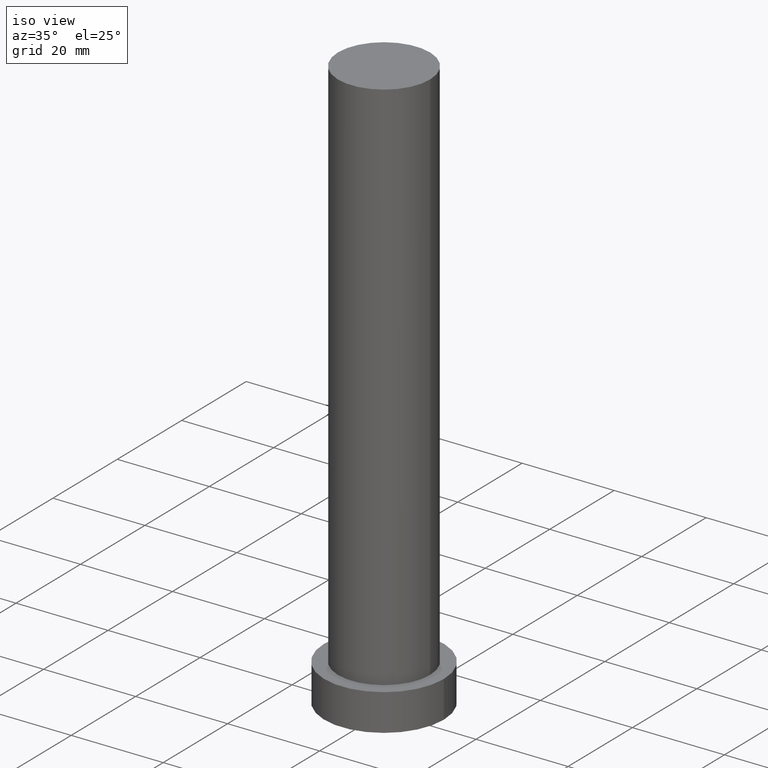
[diagram: clean part render]
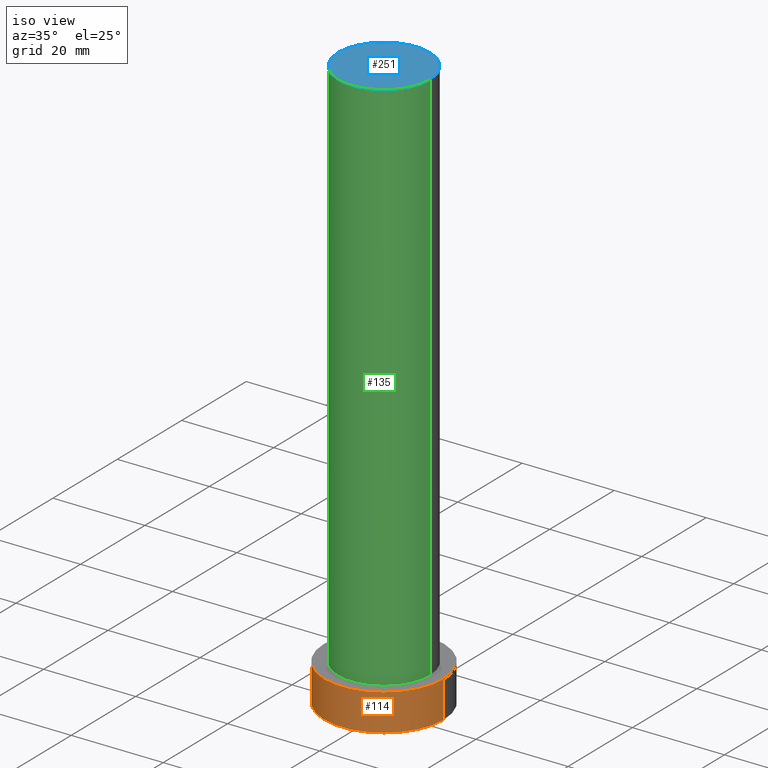
[diagram: same view with three faces highlighted in distinct colors, each labeled with its STEP entity id]
A machine part, iso view with three faces highlighted in distinct colors.
Their STEP definitions:

[orange] entity #114 — the highlighted cylindrical surface (partial cylindrical patch) has radius 13 mm, axis along (-0, -0, -1).
#15 = AXIS2_PLACEMENT_3D ( 'NONE', #52, #247, #51 ) ;
#22 = ORIENTED_EDGE ( 'NONE', *, *, #34, .F. ) ;
#31 = LINE ( 'NONE', #88, #58 ) ;
#32 = VECTOR ( 'NONE', #158, 1000.000000000000000 ) ;
#34 = EDGE_CURVE ( 'NONE', #164, #203, #76, .T. ) ;
#45 = ORIENTED_EDGE ( 'NONE', *, *, #179, .F. ) ;
#47 = CARTESIAN_POINT ( 'NONE',  ( 13.00000000000000178, 1.592040838891559293E-15, 8.000000000000000000 ) ) ;
#50 = CARTESIAN_POINT ( 'NONE',  ( -13.00000000000000178, 0.000000000000000000, 0.000000000000000000 ) ) ;
#51 = DIRECTION ( 'NONE',  ( 1.000000000000000000, 0.000000000000000000, 0.000000000000000000 ) ) ;
#52 = CARTESIAN_POINT ( 'NONE',  ( 0.000000000000000000, 0.000000000000000000, 8.000000000000000000 ) ) ;
#55 = EDGE_CURVE ( 'NONE', #250, #203, #98, .T. ) ;
#57 = DIRECTION ( 'NONE',  ( 0.000000000000000000, 0.000000000000000000, 1.000000000000000000 ) ) ;
#58 = VECTOR ( 'NONE', #211, 1000.000000000000000 ) ;
#75 = CARTESIAN_POINT ( 'NONE',  ( 13.00000000000000178, 1.592040838891559293E-15, 8.000000000000000000 ) ) ;
#76 = LINE ( 'NONE', #75, #32 ) ;
#78 = FACE_OUTER_BOUND ( 'NONE', #178, .T. ) ;
#88 = CARTESIAN_POINT ( 'NONE',  ( -13.00000000000000178, 0.000000000000000000, 8.000000000000000000 ) ) ;
#92 = AXIS2_PLACEMENT_3D ( 'NONE', #233, #57, #138 ) ;
#98 = CIRCLE ( 'NONE', #92, 13.00000000000000178 ) ;
#109 = CARTESIAN_POINT ( 'NONE',  ( 13.00000000000000178, 1.592040838891559293E-15, 0.000000000000000000 ) ) ;
#114 = ADVANCED_FACE ( 'NONE', ( #78 ), #210, .T. ) ;
#118 = ORIENTED_EDGE ( 'NONE', *, *, #231, .T. ) ;
#121 = ORIENTED_EDGE ( 'NONE', *, *, #55, .T. ) ;
#127 = CARTESIAN_POINT ( 'NONE',  ( 0.000000000000000000, 0.000000000000000000, 8.000000000000000000 ) ) ;
#138 = DIRECTION ( 'NONE',  ( 1.000000000000000000, 0.000000000000000000, 0.000000000000000000 ) ) ;
#158 = DIRECTION ( 'NONE',  ( -0.000000000000000000, -0.000000000000000000, -1.000000000000000000 ) ) ;
#164 = VERTEX_POINT ( 'NONE', #47 ) ;
#171 = CARTESIAN_POINT ( 'NONE',  ( -13.00000000000000178, 0.000000000000000000, 8.000000000000000000 ) ) ;
#178 = EDGE_LOOP ( 'NONE', ( #22, #45, #118, #121 ) ) ;
#179 = EDGE_CURVE ( 'NONE', #220, #164, #248, .T. ) ;
#200 = AXIS2_PLACEMENT_3D ( 'NONE', #127, #246, #228 ) ;
#203 = VERTEX_POINT ( 'NONE', #109 ) ;
#210 = CYLINDRICAL_SURFACE ( 'NONE', #200, 13.00000000000000178 ) ;
#211 = DIRECTION ( 'NONE',  ( -0.000000000000000000, -0.000000000000000000, -1.000000000000000000 ) ) ;
#220 = VERTEX_POINT ( 'NONE', #171 ) ;
#228 = DIRECTION ( 'NONE',  ( -1.000000000000000000, 0.000000000000000000, 0.000000000000000000 ) ) ;
#231 = EDGE_CURVE ( 'NONE', #220, #250, #31, .T. ) ;
#233 = CARTESIAN_POINT ( 'NONE',  ( 0.000000000000000000, 0.000000000000000000, 0.000000000000000000 ) ) ;
#246 = DIRECTION ( 'NONE',  ( -0.000000000000000000, -0.000000000000000000, -1.000000000000000000 ) ) ;
#247 = DIRECTION ( 'NONE',  ( 0.000000000000000000, 0.000000000000000000, 1.000000000000000000 ) ) ;
#248 = CIRCLE ( 'NONE', #15, 13.00000000000000178 ) ;
#250 = VERTEX_POINT ( 'NONE', #50 ) ;

[blue] entity #251 — the highlighted planar face has unit normal (0, 0, 1).
#6 = CARTESIAN_POINT ( 'NONE',  ( 0.000000000000000000, 0.000000000000000000, 125.0000000000000000 ) ) ;
#13 = CARTESIAN_POINT ( 'NONE',  ( 10.00000000000000000, 1.224646799147353256E-15, 125.0000000000000000 ) ) ;
#39 = VERTEX_POINT ( 'NONE', #235 ) ;
#54 = AXIS2_PLACEMENT_3D ( 'NONE', #214, #94, #60 ) ;
#59 = EDGE_LOOP ( 'NONE', ( #253, #237 ) ) ;
#60 = DIRECTION ( 'NONE',  ( 1.000000000000000000, 0.000000000000000000, 0.000000000000000000 ) ) ;
#74 = EDGE_CURVE ( 'NONE', #39, #139, #175, .T. ) ;
#87 = CIRCLE ( 'NONE', #134, 10.00000000000000000 ) ;
#89 = CARTESIAN_POINT ( 'NONE',  ( 0.000000000000000000, 0.000000000000000000, 125.0000000000000000 ) ) ;
#94 = DIRECTION ( 'NONE',  ( 0.000000000000000000, 0.000000000000000000, 1.000000000000000000 ) ) ;
#107 = DIRECTION ( 'NONE',  ( 0.000000000000000000, 0.000000000000000000, 1.000000000000000000 ) ) ;
#134 = AXIS2_PLACEMENT_3D ( 'NONE', #89, #229, #156 ) ;
#139 = VERTEX_POINT ( 'NONE', #13 ) ;
#151 = DIRECTION ( 'NONE',  ( 1.000000000000000000, 0.000000000000000000, -0.000000000000000000 ) ) ;
#156 = DIRECTION ( 'NONE',  ( 1.000000000000000000, 0.000000000000000000, 0.000000000000000000 ) ) ;
#157 = EDGE_CURVE ( 'NONE', #139, #39, #87, .T. ) ;
#167 = FACE_OUTER_BOUND ( 'NONE', #59, .T. ) ;
#175 = CIRCLE ( 'NONE', #54, 10.00000000000000000 ) ;
#183 = PLANE ( 'NONE',  #234 ) ;
#214 = CARTESIAN_POINT ( 'NONE',  ( 0.000000000000000000, 0.000000000000000000, 125.0000000000000000 ) ) ;
#229 = DIRECTION ( 'NONE',  ( 0.000000000000000000, 0.000000000000000000, 1.000000000000000000 ) ) ;
#234 = AXIS2_PLACEMENT_3D ( 'NONE', #6, #107, #151 ) ;
#235 = CARTESIAN_POINT ( 'NONE',  ( -10.00000000000000000, 0.000000000000000000, 125.0000000000000000 ) ) ;
#237 = ORIENTED_EDGE ( 'NONE', *, *, #157, .T. ) ;
#251 = ADVANCED_FACE ( 'NONE', ( #167 ), #183, .T. ) ;
#253 = ORIENTED_EDGE ( 'NONE', *, *, #74, .T. ) ;

[green] entity #135 — the highlighted cylindrical surface (partial cylindrical patch) has radius 10 mm, axis along (-0, -0, -1).
#10 = CYLINDRICAL_SURFACE ( 'NONE', #249, 10.00000000000000000 ) ;
#13 = CARTESIAN_POINT ( 'NONE',  ( 10.00000000000000000, 1.224646799147353256E-15, 125.0000000000000000 ) ) ;
#28 = DIRECTION ( 'NONE',  ( 0.000000000000000000, 0.000000000000000000, 1.000000000000000000 ) ) ;
#37 = ORIENTED_EDGE ( 'NONE', *, *, #74, .F. ) ;
#39 = VERTEX_POINT ( 'NONE', #235 ) ;
#43 = VERTEX_POINT ( 'NONE', #217 ) ;
#54 = AXIS2_PLACEMENT_3D ( 'NONE', #214, #94, #60 ) ;
#60 = DIRECTION ( 'NONE',  ( 1.000000000000000000, 0.000000000000000000, 0.000000000000000000 ) ) ;
#65 = ORIENTED_EDGE ( 'NONE', *, *, #197, .T. ) ;
#68 = DIRECTION ( 'NONE',  ( -1.000000000000000000, 0.000000000000000000, 0.000000000000000000 ) ) ;
#70 = DIRECTION ( 'NONE',  ( -0.000000000000000000, -0.000000000000000000, -1.000000000000000000 ) ) ;
#74 = EDGE_CURVE ( 'NONE', #39, #139, #175, .T. ) ;
#82 = LINE ( 'NONE', #86, #225 ) ;
#86 = CARTESIAN_POINT ( 'NONE',  ( -10.00000000000000000, 0.000000000000000000, 125.0000000000000000 ) ) ;
#91 = AXIS2_PLACEMENT_3D ( 'NONE', #149, #28, #104 ) ;
#94 = DIRECTION ( 'NONE',  ( 0.000000000000000000, 0.000000000000000000, 1.000000000000000000 ) ) ;
#104 = DIRECTION ( 'NONE',  ( 1.000000000000000000, 0.000000000000000000, 0.000000000000000000 ) ) ;
#111 = CARTESIAN_POINT ( 'NONE',  ( 0.000000000000000000, 0.000000000000000000, 125.0000000000000000 ) ) ;
#123 = ORIENTED_EDGE ( 'NONE', *, *, #216, .F. ) ;
#125 = EDGE_LOOP ( 'NONE', ( #123, #37, #65, #196 ) ) ;
#130 = DIRECTION ( 'NONE',  ( -0.000000000000000000, -0.000000000000000000, -1.000000000000000000 ) ) ;
#131 = LINE ( 'NONE', #132, #174 ) ;
#132 = CARTESIAN_POINT ( 'NONE',  ( 10.00000000000000000, 1.224646799147353256E-15, 125.0000000000000000 ) ) ;
#135 = ADVANCED_FACE ( 'NONE', ( #207 ), #10, .T. ) ;
#139 = VERTEX_POINT ( 'NONE', #13 ) ;
#149 = CARTESIAN_POINT ( 'NONE',  ( 0.000000000000000000, 0.000000000000000000, 8.000000000000000000 ) ) ;
#174 = VECTOR ( 'NONE', #212, 1000.000000000000000 ) ;
#175 = CIRCLE ( 'NONE', #54, 10.00000000000000000 ) ;
#177 = CIRCLE ( 'NONE', #91, 10.00000000000000000 ) ;
#196 = ORIENTED_EDGE ( 'NONE', *, *, #240, .T. ) ;
#197 = EDGE_CURVE ( 'NONE', #39, #254, #82, .T. ) ;
#207 = FACE_OUTER_BOUND ( 'NONE', #125, .T. ) ;
#212 = DIRECTION ( 'NONE',  ( -0.000000000000000000, -0.000000000000000000, -1.000000000000000000 ) ) ;
#214 = CARTESIAN_POINT ( 'NONE',  ( 0.000000000000000000, 0.000000000000000000, 125.0000000000000000 ) ) ;
#216 = EDGE_CURVE ( 'NONE', #139, #43, #131, .T. ) ;
#217 = CARTESIAN_POINT ( 'NONE',  ( 10.00000000000000000, 1.224646799147353256E-15, 8.000000000000000000 ) ) ;
#225 = VECTOR ( 'NONE', #130, 1000.000000000000000 ) ;
#235 = CARTESIAN_POINT ( 'NONE',  ( -10.00000000000000000, 0.000000000000000000, 125.0000000000000000 ) ) ;
#240 = EDGE_CURVE ( 'NONE', #254, #43, #177, .T. ) ;
#242 = CARTESIAN_POINT ( 'NONE',  ( -10.00000000000000000, 0.000000000000000000, 8.000000000000000000 ) ) ;
#249 = AXIS2_PLACEMENT_3D ( 'NONE', #111, #70, #68 ) ;
#254 = VERTEX_POINT ( 'NONE', #242 ) ;